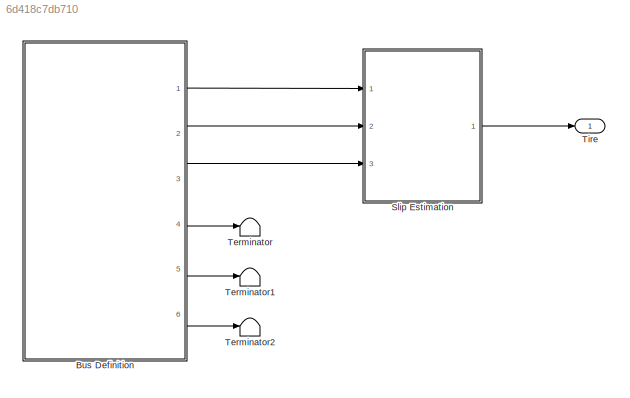
MODEL slx_6d418c7db710
KIND model
CONFIG AbsTol = auto
CONFIG EnableMultiTasking = off
CONFIG FixedStep = auto
CONFIG MaxStep = auto
CONFIG MinStep = auto
CONFIG RelTol = 1e-3
CONFIG SampleTimeConstraint = Unconstrained
CONFIG SolverName = VariableStepAuto
CONFIG StartTime = 0.0
CONFIG StopTime = 10.0
BLOCK [ModelReference] Bus Definition
  ModelNameDialog = VehicleModelBusTest.slx
  ModelReferenceVersion = 1.30
  Ports = [0, 6]
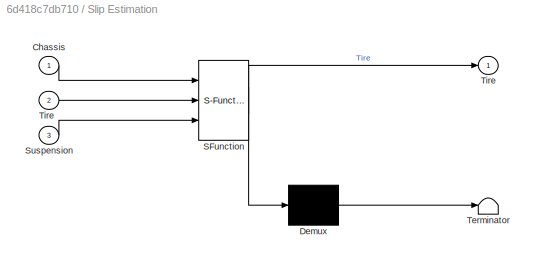
BLOCK [SubSystem] Slip Estimation
  ErrorFcn = Stateflow.Translate.translate
  PermitHierarchicalResolution = ExplicitOnly
  Ports = [3, 1]
  RequestExecContextInheritance = off
  SFBlockType = MATLAB Function
  TreatAsAtomicUnit = on
BLOCK [Demux] Slip Estimation/ Demux 
  Outputs = 1
  Ports = [1, 1]
BLOCK [S-Function] Slip Estimation/ SFunction 
  EnableBusSupport = on
  FunctionName = sf_sfun
  Parameters = Vehicle
  PortCounts = [3 2]
  Ports = [3, 2]
  SFcnIsStateOwnerBlock = off
  SFunctionDeploymentMode = off
  Tag = Stateflow S-Function 2
BLOCK [Terminator] Slip Estimation/ Terminator 
BLOCK [Inport] Slip Estimation/Chassis
BLOCK [Inport] Slip Estimation/Suspension
  Port = 3
BLOCK [Outport] Slip Estimation/Tire
BLOCK [Inport] Slip Estimation/Tire 
  Port = 2
BLOCK [Terminator] Terminator
BLOCK [Terminator] Terminator1
BLOCK [Terminator] Terminator2
BLOCK [Outport] Tire
LINE Bus Definition:1 -> Slip Estimation:1
LINE Bus Definition:2 -> Slip Estimation:2
LINE Bus Definition:3 -> Slip Estimation:3
LINE Bus Definition:4 -> Terminator:1
LINE Bus Definition:5 -> Terminator1:1
LINE Bus Definition:6 -> Terminator2:1
LINE Slip Estimation:1 -> Tire:1
CHART Slip Estimation states=1 transitions=1
  STATE_LABEL 'eML_blk_kernel()'
  STATE_LABEL 'SCRIPT:\nfunction Tire = SlipEstimation(Chassis, Tire, Suspension, Vehicle)\n%% Calculate Slip Angle\nTire.Slip_Angle(1) = Suspension.Steer(1) - atan2d( ...\n    Chassis.Lateral(2) + Vehicle.Suspension.a*Chassis.Yaw(2), ...\n    Chassis.Longitudinal(2) - Suspension.Track(1)*Chassis.Yaw(2) );\n\nTire.Slip_Angle(2) = Suspension.Steer(2) - atan2d( ...\n    Chassis.Lateral(2) + Vehicle.Suspension.a*Chassis.Ya...<+1385ch>'
CHART  states=0 transitions=0
